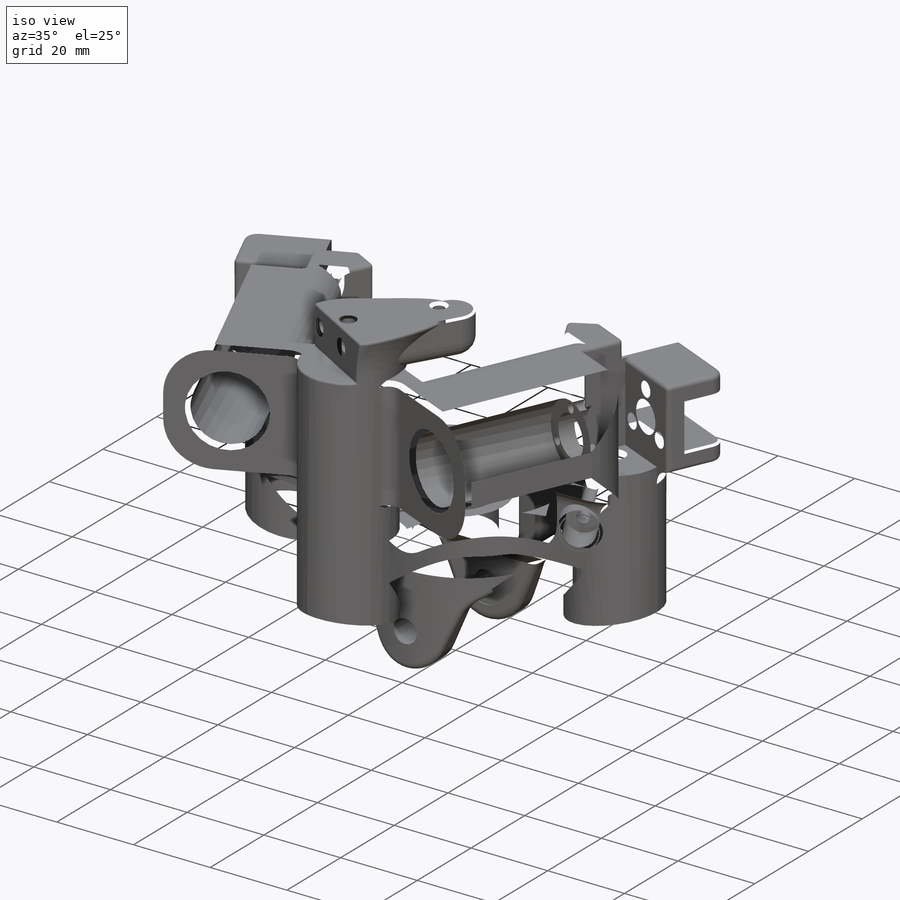
[diagram: iso view]
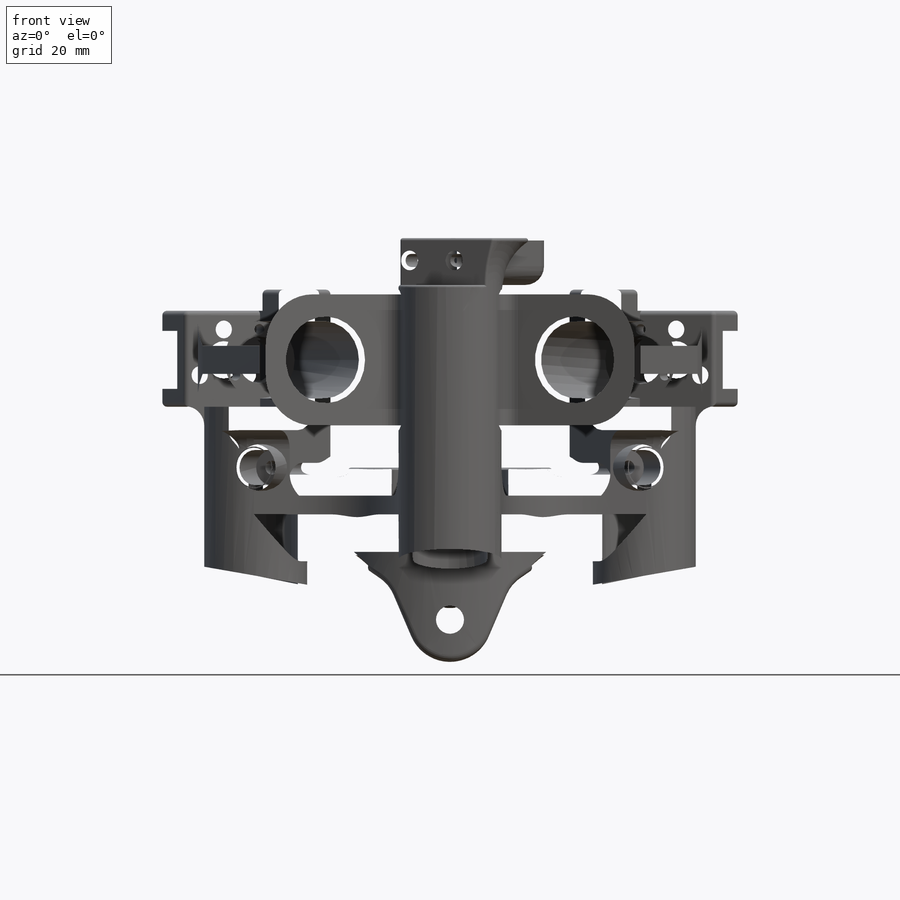
[diagram: front view]
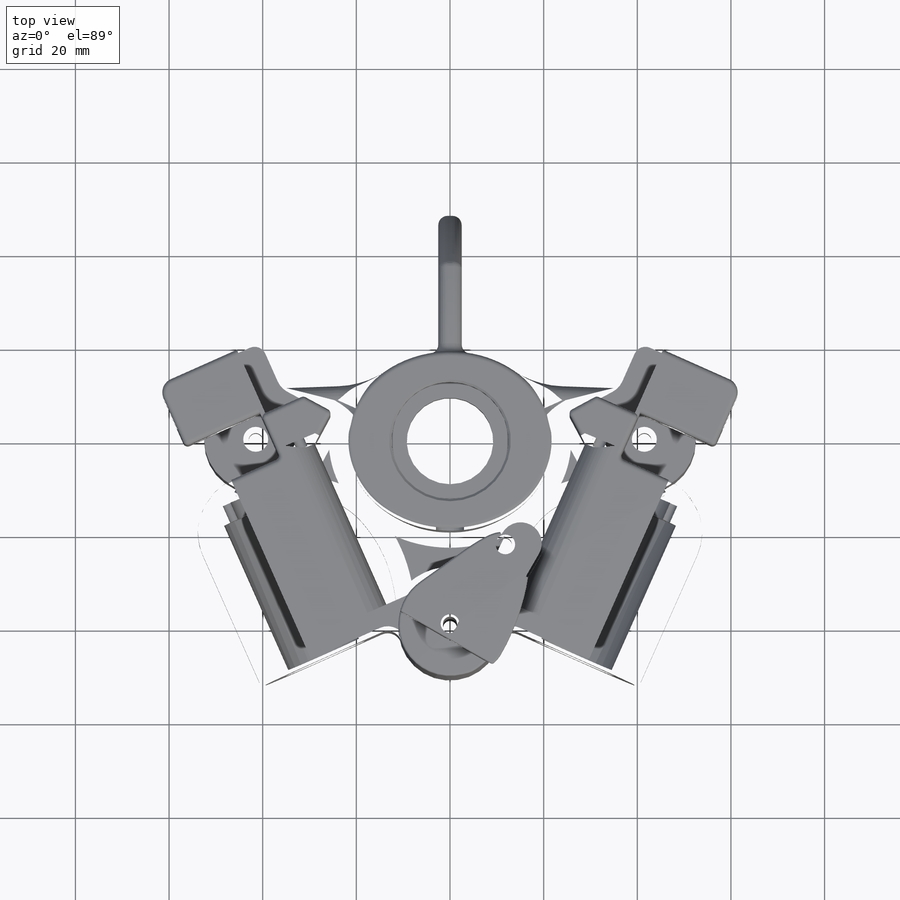
[diagram: top view]
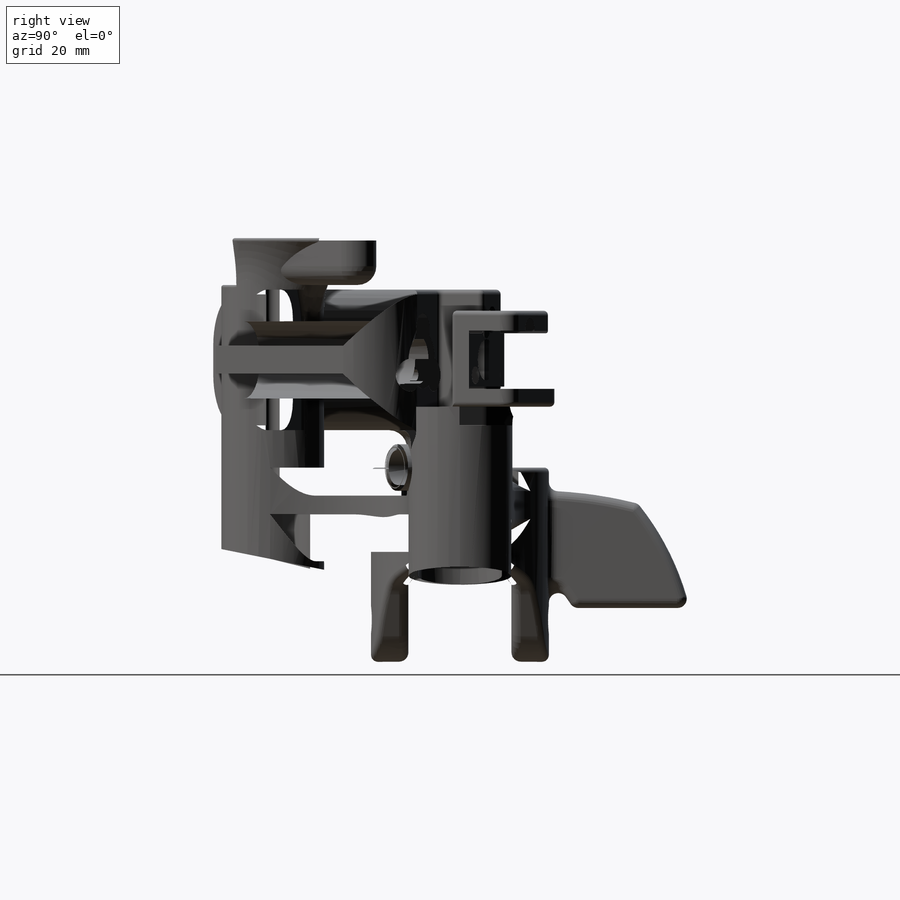
[diagram: right view]
SOLIDWORKS PART (.sldprt)
format: sldprt  version: not decoded by parser v0  size: 4,113,408 bytes
history: native  units: mm
features: sketch x83, fillet x52, cut_extrude x50, extrude x29, mirror x9, chamfer x8, plane x3, pattern_circular x2, material x1 (+9 scaffold rows collapsed)
feature tree (246):
  scaffold x9  (default folders/planes/origin — collapsed)
  material  "Material <nicht festgelegt>"
  plane  "Vorne"
  plane  "Oben"
  plane  "Rechts"
  sketch  "Skizze1"  dims[D1=38.0mm D2=44.0mm]
  extrude  "Aufsatz-Linear austragen1"  Depth=27.5mm
  sketch  "Skizze2"  dims[D1=10.0mm]
  sketch  "Skizze3"  dims[c1.D1=25.0mm c1.D2=12.5mm c2.D1=11.0mm c2.D2=11.0mm]
  cut_extrude  "Schnitt-Linear austragen1"  Depth=17.5mm
  sketch  "Skizze4"  dims[D1=10.3mm D2=7.5mm]
  cut_extrude  "Schnitt-Linear austragen2"  Depth=11.25mm
  sketch  "Skizze5"  dims[D1=6.0mm]
  cut_extrude  "Schnitt-Linear austragen3"  Depth=30mm
  sketch  "Skizze6"  dims[D2=9.0mm D1=13.0mm]
  cut_extrude  "Schnitt-Linear austragen4"  Depth=30mm
  mirror  "Spiegeln1"
  sketch  "Skizze7"  dims[D1=6.5mm]
  cut_extrude  "Schnitt-Linear austragen5"  Depth=25mm
  sketch  "Skizze8"
  cut_extrude  "Schnitt-Linear austragen6"  Depth=20mm
  mirror  "Spiegeln2"
  sketch  "Skizze9"  dims[D1=0.0mm]
  extrude  "Aufsatz-Linear austragen2"  Depth=15mm
  sketch  "Skizze10"  dims[D2=22.0mm D1=41.5mm D3=12.0mm D4=12.0mm D5=14.0mm]
  extrude  "Aufsatz-Linear austragen3"  Depth=15mm
  sketch  "Skizze12"  dims[D1=18.0mm]
  cut_extrude  "Schnitt-Linear austragen7"  Depth=10mm
  mirror  "Spiegeln3"
  sketch  "Skizze11"  dims[D1=22.0mm D2=25.0mm D3=12.5mm D4=10.0mm D5=40.0mm]
  extrude  "Aufsatz-Linear austragen4"  Depth=15mm
  sketch  "Skizze14"  dims[D1=16.0mm]
  cut_extrude  "Schnitt-Linear austragen8"  Depth=14mm
  sketch  "Skizze15"  dims[D1=18.5mm]
  cut_extrude  "Schnitt-Linear austragen9"  Depth=15mm
  sketch  "Skizze16"  dims[D1=25.0mm]
  cut_extrude  "Schnitt-Linear austragen10"  Depth=8mm
  sketch  "Skizze17"  dims[D1=10.5mm]
  extrude  "Aufsatz-Linear austragen5"  Depth=35mm
  sketch  "Skizze18"  dims[D1=5.0mm]
  cut_extrude  "Schnitt-Linear austragen11"  Depth=20mm
  sketch  "Skizze20"  dims[D1=3.0mm D2=3.0mm D3=3.0mm]
  cut_extrude  "Schnitt-Linear austragen12"  Depth=30mm
  sketch  "Skizze21"
  extrude  "Aufsatz-Linear austragen6"  Depth=60mm
  sketch  "Skizze22"  dims[c1.D1=~71.92044mm c2.D1=30.0deg c2.D2=4.5mm c2.D3=15.0mm]
  extrude  "Aufsatz-Linear austragen7"  Depth=10mm
  sketch  "Skizze24"  dims[D1=16.0mm]
  cut_extrude  "Schnitt-Linear austragen13"  Depth=39.5mm
  fillet  "Verrundung2"  Radius=12mm
  fillet  "Verrundung1"  Radius=20mm
  fillet  "Verrundung3"  Radius=5mm
  sketch  "Skizze25"
  cut_extrude  "Schnitt-Linear austragen14"  Depth=34mm
  sketch  "Skizze26"
  extrude  "Aufsatz-Linear austragen8"  Depth=25mm
  sketch  "Skizze27"  dims[c1.D1=~58.833796mm c2.D1=24.0deg c2.D2=5.5mm c2.D3=49.0mm]
  extrude  "Aufsatz-Linear austragen9"  Depth=15mm
  sketch  "Skizze28"  dims[D1=16.5mm]
  cut_extrude  "Schnitt-Linear austragen15"  Depth=34.7mm
  sketch  "Skizze29"  dims[D1=10.0mm D2=8.1mm]
  cut_extrude  "Schnitt-Linear austragen16"  Depth=40mm
  sketch  "Skizze56"  dims[D1=0.0mm]
  cut_extrude  "Schnitt-Linear austragen29"  [1 undecoded]
  mirror  "Spiegeln4"
  fillet  "Verrundung5"  Radius=6mm
  fillet  "Verrundung6"  Radius=6mm
  fillet  "Verrundung45"  Radius=6mm
  sketch  "Skizze96"
  extrude  "Aufsatz-Linear austragen32"  [1 undecoded]
  mirror  "Spiegeln9"
  fillet  "Verrundung7"  Radius=3mm
  fillet  "Verrundung8"  Radius=2mm
  sketch  "Skizze30"  dims[D1=10.0mm]
  cut_extrude  "Schnitt-Linear austragen17"  Depth=10mm
  sketch  "Skizze31"  dims[D1=10.3mm]
  cut_extrude  "Schnitt-Linear austragen18"  Depth=10mm
  sketch  "Skizze33"  dims[D1=10.0mm]
  cut_extrude  "Schnitt-Linear austragen19"  Depth=16mm
  sketch  "Skizze36"  dims[c1.D1=3.0mm c1.D2=20.0mm c1.D3=23.0mm c1.D4=11.5mm c1.D5=~11.634691mm c2.D5=~0.388202deg c3.D5=~19.840211mm c4.D5=~0.388202deg]
  cut_extrude  "Schnitt-Linear austragen22"  Depth=20mm
  sketch  "Skizze37"
  extrude  "Aufsatz-Linear austragen10"  [1 undecoded]
  sketch  "Skizze38"  dims[c1.D1=7.5mm c1.D2=2.0mm c1.D3=~11.760676mm c2.D3=90.0deg c3.D3=5.5mm]
  cut_extrude  "Schnitt-Linear austragen23"  Depth=20mm
  sketch  "Skizze39"  dims[D1=3.0mm]
  cut_extrude  "Schnitt-Linear austragen24"  Depth=20mm
  mirror  "Spiegeln5"
  sketch  "Skizze78"
  extrude  "Aufsatz-Linear austragen29"  Depth=15mm
  sketch  "Skizze79"
  extrude  "Aufsatz-Linear austragen30"  Depth=15mm
  sketch  "Skizze80"
  cut_extrude  "Schnitt-Linear austragen41"  Depth=50mm
  sketch  "Skizze81"
  cut_extrude  "Schnitt-Linear austragen42"  Depth=50mm
  sketch  "Skizze82"
  cut_extrude  "Schnitt-Linear austragen43"  Depth=50mm
  sketch  "Skizze83"
  cut_extrude  "Schnitt-Linear austragen44"  Depth=50mm
  fillet  "Verrundung9"  Radius=4mm
  sketch  "Skizze40"  dims[c1.D1=4.0mm c1.D2=35.0mm c2.D1=2.5mm]
  extrude  "Aufsatz-Linear austragen11"  Depth=2.5mm
  sketch  "Skizze41"
  sketch  "Skizze42"
  sketch  "Skizze43"  dims[D1=10.0mm]
  extrude  "Aufsatz-Linear austragen12"  Depth=8mm
  sketch  "Skizze44"  dims[D1=10.0mm]
  extrude  "Aufsatz-Linear austragen13"  Depth=8mm
  fillet  "Verrundung12"  Radius=8mm
  fillet  "Verrundung13"  Radius=1.5mm
  fillet  "Verrundung16"  Radius=2mm
  fillet  "Verrundung17"  Radius=2mm
  fillet  "Verrundung42"  Radius=2mm
  sketch  "Skizze45"  dims[D1=3.0mm]
  extrude  "Aufsatz-Linear austragen14"  Depth=3mm
  sketch  "Skizze46"
  extrude  "Aufsatz-Linear austragen15"  Depth=12mm
  sketch  "Skizze47"  dims[D1=0.0mm]
  extrude  "Aufsatz-Linear austragen16"  Depth=3.7mm
  sketch  "Skizze48"
  extrude  "Aufsatz-Linear austragen17"  Depth=3.7mm
  sketch  "Skizze49"  dims[D1=5.0mm]
  cut_extrude  "Schnitt-Linear austragen25"  Depth=3.7mm
  sketch  "Skizze50"  dims[D1=8.0mm]
  cut_extrude  "Schnitt-Linear austragen26"  Depth=9mm
  sketch  "Skizze51"
  extrude  "Aufsatz-Linear austragen19"  [1 undecoded]
  sketch  "Skizze52"
  extrude  "Aufsatz-Linear austragen20"  [1 undecoded]
  sketch  "Skizze53"
  extrude  "Aufsatz-Linear austragen21"  [1 undecoded]
  sketch  "Skizze54"  dims[D1=3.0mm]
  cut_extrude  "Schnitt-Linear austragen27"  Depth=10mm
  sketch  "Skizze59"  dims[D1=69.0mm D2=10.0mm D3=3.0mm]
  cut_extrude  "Schnitt-Linear austragen30"  Depth=60mm
  fillet  "Verrundung18"  Radius=0.5mm
  fillet  "Verrundung19"  Radius=0.5mm
  sketch  "Skizze60"  dims[D1=2.8mm D2=2.8mm]
  cut_extrude  "Schnitt-Linear austragen31"  Depth=20mm
  sketch  "Skizze84"  dims[D1=10.0mm D2=5.0mm]
  extrude  "Aufsatz-Linear austragen31"  Depth=10mm
  sketch  "Skizze61"  dims[D1=2.8mm]
  cut_extrude  "Schnitt-Linear austragen32"  Depth=12mm
  fillet  "Verrundung47"  Radius=5mm
  fillet  "Verrundung48"  Radius=4mm
  sketch  "Skizze63"  dims[D1=25.0mm D2=10.6mm]
  extrude  "Aufsatz-Linear austragen22"  Depth=18mm
  sketch  "Skizze64"  dims[D1=0.2mm D2=0.2mm]
  cut_extrude  "Schnitt-Linear austragen33"  Depth=30mm
  sketch  "Skizze66"  dims[c1.D1=4.7mm c1.D2=8.0mm c1.D3=1.0mm c2.D1=4.7mm c2.D2=10.1mm]
  cut_extrude  "Schnitt-Linear austragen35"  Depth=20mm
  sketch  "Skizze67"
  extrude  "Aufsatz-Linear austragen23"  Depth=7mm
  sketch  "Skizze68"  dims[D3=2.4mm D1=5.5mm D2=4.2mm]
  cut_extrude  "Schnitt-Linear austragen36"  Depth=10mm
  sketch  "Skizze69"  dims[D1=5.5mm]
  mirror  "Spiegeln6"
  fillet  "Verrundung21"  Radius=20mm
  fillet  "Verrundung22"  Radius=2mm
  sketch  "Skizze70"  dims[D1=35.0mm]
  extrude  "Aufsatz-Linear austragen24"  [1 undecoded]
  mirror  "Spiegeln7"
  sketch  "Skizze71"
  extrude  "Aufsatz-Linear austragen25"  Depth=9mm
  sketch  "Skizze72"
  extrude  "Aufsatz-Linear austragen26"  Depth=6mm
  fillet  "Verrundung24"  Radius=3mm
  fillet  "Verrundung25"  Radius=1mm
  fillet  "Verrundung26"  Radius=1mm
  sketch  "Skizze73"
  cut_extrude  "Schnitt-Linear austragen38"  Depth=60mm
  fillet  "Verrundung28"  Radius=1mm
  fillet  "Verrundung29"  Radius=3mm
  chamfer  "Fase1"  Distance=0.5mm Angle=45deg
  fillet  "Verrundung30"  Radius=1mm
  fillet  "Verrundung31"  Radius=4mm
  fillet  "Verrundung46"  Radius=12mm
  fillet  "Verrundung36"  Radius=2mm
  fillet  "Verrundung37"  Radius=0.5mm
  fillet  "Verrundung38"  Radius=4mm
  fillet  "Verrundung39"  Radius=4mm
  fillet  "Verrundung40"  Radius=6mm
  fillet  "Verrundung41"  Radius=6mm
  sketch  "Skizze76"
  cut_extrude  "Schnitt-Linear austragen39"  Depth=15mm
  mirror  "Spiegeln8"
  fillet  "Verrundung43"  Radius=0.7mm
  sketch  "Skizze77"  dims[c1.D1=~30.937873mm c1.D2=~18.03231mm c2.D2=12.5deg]
  cut_extrude  "Schnitt-Linear austragen40"  Depth=15mm
  fillet  "Verrundung44"  Radius=1mm
  sketch  "Skizze85"  dims[D1=0.0mm]
  cut_extrude  "Schnitt-Linear austragen45"  Depth=15mm
  sketch  "Skizze86"  dims[D1=0.0mm]
  cut_extrude  "Schnitt-Linear austragen46"  Depth=15mm
  sketch  "Skizze87"  dims[D1=8.0mm]
  cut_extrude  "Schnitt-Linear austragen47"  Depth=10mm
  sketch  "Skizze88"  dims[D1=8.0mm]
  cut_extrude  "Schnitt-Linear austragen48"  Depth=10mm
  fillet  "Verrundung49"  Radius=0.5mm
  sketch  "Skizze89"  dims[D1=2.3mm D2=6.5mm]
  cut_extrude  "Schnitt-Linear austragen49"  Depth=10mm
  sketch  "Skizze90"  dims[D1=5.0mm]
  cut_extrude  "Schnitt-Linear austragen50"  Depth=4.1mm
  pattern_circular  "Kreismuster1"  Count=3 Angle=360deg
  sketch  "Skizze91"  dims[D1=2.3mm D2=6.5mm]
  cut_extrude  "Schnitt-Linear austragen51"  Depth=10mm
  sketch  "Skizze92"  dims[D1=5.0mm]
  cut_extrude  "Schnitt-Linear austragen52"  Depth=4.1mm
  pattern_circular  "Kreismuster2"  Count=3 Angle=360deg
  sketch  "Skizze93"  dims[D1=3.8mm]
  cut_extrude  "Schnitt-Linear austragen53"  Depth=30mm
  fillet  "Verrundung50"  Radius=1mm
  fillet  "Verrundung51"  Radius=1mm
  fillet  "Verrundung53"  Radius=1mm
  fillet  "Verrundung54"  Radius=1mm
  chamfer  "Fase2"  Distance=1mm Angle=45deg
  fillet  "Verrundung55"  Radius=2mm
  fillet  "Verrundung56"  Radius=3mm
  fillet  "Verrundung57"  Radius=1mm
  chamfer  "Fase3"  Distance=0.7mm Angle=45deg
  chamfer  "Fase4"  Distance=0.7mm Angle=45deg
  fillet  "Verrundung58"  Radius=1mm
  chamfer  "Fase5"  Distance=0.7mm Angle=45deg
  sketch  "Skizze94"
  cut_extrude  "Schnitt-Linear austragen54"  Depth=1mm
  sketch  "Skizze95"  dims[D1=3.8mm D2=3.8mm D3=3.8mm]
  cut_extrude  "Schnitt-Linear austragen55"  Depth=15mm
  chamfer  "Fase6"  Distance=10mm
  chamfer  "Fase7"  Distance=0.7mm
  fillet  "Verrundung59"  Radius=0.5mm
  fillet  "Verrundung60"  Radius=0.5mm
  fillet  "Verrundung61"  Radius=0.5mm
  chamfer  "Fase8"  Distance=0.4mm Angle=45deg
  fillet  "Verrundung62"  Radius=0.5mm
  fillet  "Verrundung63"  Radius=0.5mm
  fillet  "Verrundung64"  Radius=0.5mm
  fillet  "Verrundung65"  Radius=2mm
decode coverage: 192 of 233 modeling features carry decoded parameters
note: ~ marks probable driven/reference dimensions
note: 7 parameter values undecoded
summary: no parameter record found for 7 features
note: suppression state not decoded; provenance and decode notes live in map.json
